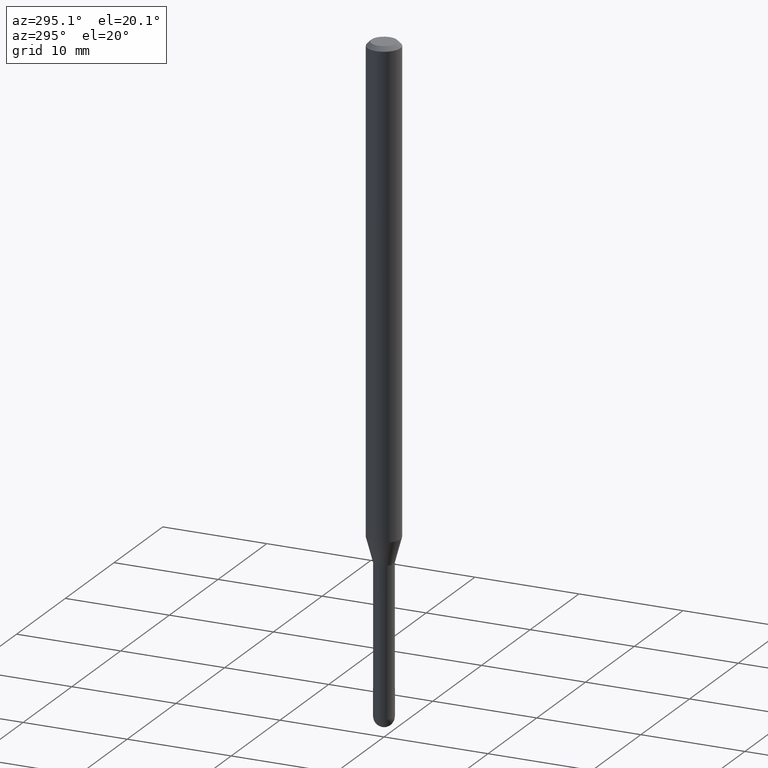
[diagram: clean part render]
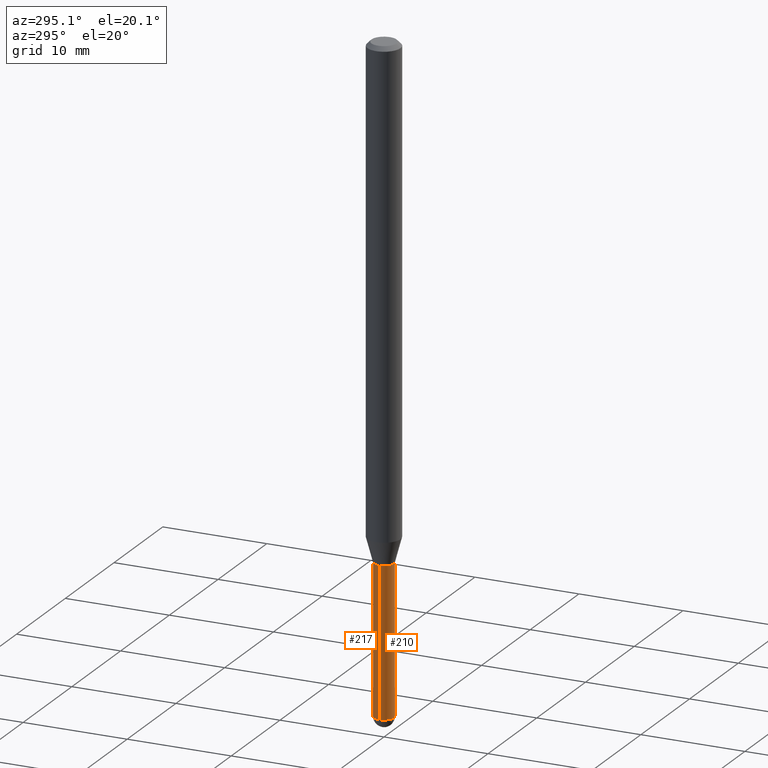
[diagram: same view with one multi-face feature highlighted, each face labeled with its STEP entity id]
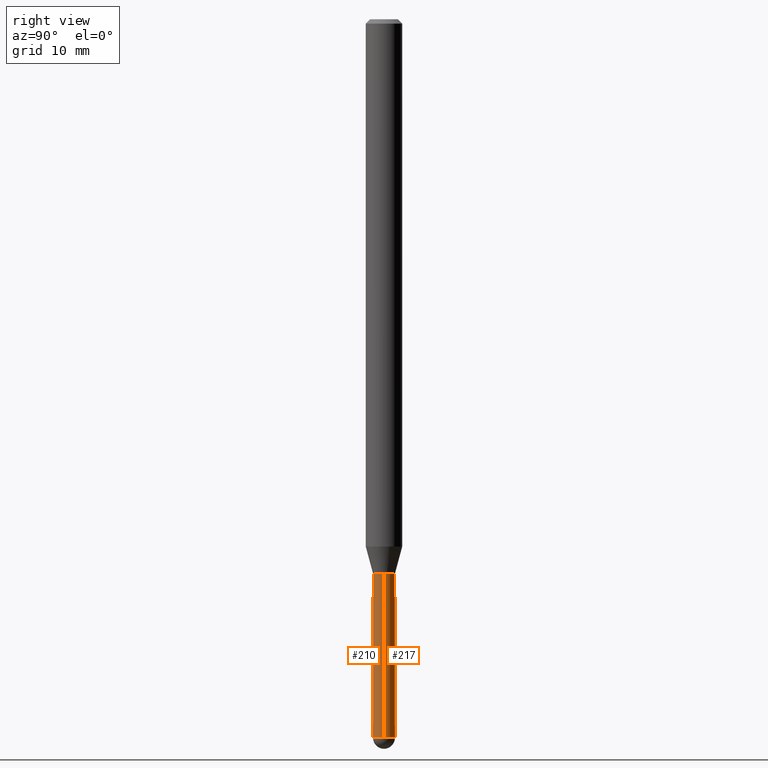
[diagram: same view with one multi-face feature highlighted, each face labeled with its STEP entity id]
A machine part, auxiliary view. The highlighted faces form ONE feature: a constant-radius fillet chain: 2 tangent blend faces with common blend radius 0.9525 mm. The faces share edges in the B-rep.
A second angle (right view) of the same feature is appended — it is thin or edge-on in the first view.
Their STEP definitions:
[1] entity #210 (Cylinder):
#4 = CARTESIAN_POINT ( 'NONE',  ( 0.03749999999999999861, -2.618611004132350016E-16, 1.828566290923475922E-30 ) ) ;
#14 = AXIS2_PLACEMENT_3D ( 'NONE', #33, #318, #356 ) ;
#16 = EDGE_CURVE ( 'NONE', #404, #69, #508, .T. ) ;
#33 = CARTESIAN_POINT ( 'NONE',  ( 0.000000000000000000, 0.000000000000000000, 0.000000000000000000 ) ) ;
#69 = VERTEX_POINT ( 'NONE', #321 ) ;
#75 = EDGE_CURVE ( 'NONE', #282, #421, #417, .T. ) ;
#84 = EDGE_LOOP ( 'NONE', ( #392, #131, #233, #481, #231 ) ) ;
#97 = EDGE_CURVE ( 'NONE', #282, #265, #251, .T. ) ;
#105 = DIRECTION ( 'NONE',  ( -2.445468806185136597E-29, 3.491481338843145583E-15, 1.000000000000000000 ) ) ;
#112 = DIRECTION ( 'NONE',  ( 1.000000000000000000, -6.982962677686242256E-15, 0.000000000000000000 ) ) ;
#117 = CARTESIAN_POINT ( 'NONE',  ( 6.021966935230899318E-29, -8.597772796901246653E-15, -2.462500000000000355 ) ) ;
#128 = CARTESIAN_POINT ( 'NONE',  ( 4.646390731751759982E-29, -6.633814543801977041E-15, -1.900000000000000133 ) ) ;
#131 = ORIENTED_EDGE ( 'NONE', *, *, #75, .T. ) ;
#133 = EDGE_CURVE ( 'NONE', #421, #404, #286, .T. ) ;
#137 = VECTOR ( 'NONE', #447, 39.37007874015748143 ) ;
#163 = VECTOR ( 'NONE', #205, 39.37007874015748143 ) ;
#201 = CYLINDRICAL_SURFACE ( 'NONE', #14, 0.03749999999999999861 ) ;
#204 = CARTESIAN_POINT ( 'NONE',  ( 6.021966935230899318E-29, -8.597772796901246653E-15, -2.462500000000000355 ) ) ;
#205 = DIRECTION ( 'NONE',  ( -2.445468806185136877E-29, 3.491481338843145188E-15, 1.000000000000000000 ) ) ;
#206 = AXIS2_PLACEMENT_3D ( 'NONE', #117, #285, #477 ) ;
#210 = ADVANCED_FACE ( 'NONE', ( #239 ), #201, .T. ) ;
#231 = ORIENTED_EDGE ( 'NONE', *, *, #237, .F. ) ;
#233 = ORIENTED_EDGE ( 'NONE', *, *, #133, .T. ) ;
#237 = EDGE_CURVE ( 'NONE', #265, #69, #460, .T. ) ;
#239 = FACE_OUTER_BOUND ( 'NONE', #84, .T. ) ;
#248 = DIRECTION ( 'NONE',  ( 1.000000000000000000, -6.982962677686268288E-15, 0.000000000000000000 ) ) ;
#251 = LINE ( 'NONE', #293, #137 ) ;
#257 = CARTESIAN_POINT ( 'NONE',  ( -2.664535259099770148E-16, -0.03750000000000855427, -2.462500000000000355 ) ) ;
#265 = VERTEX_POINT ( 'NONE', #325 ) ;
#282 = VERTEX_POINT ( 'NONE', #408 ) ;
#285 = DIRECTION ( 'NONE',  ( -2.445468806185136597E-29, 3.491481338843145583E-15, 1.000000000000000000 ) ) ;
#286 = CIRCLE ( 'NONE', #468, 0.03749999999999999861 ) ;
#287 = DIRECTION ( 'NONE',  ( -2.445468806185136597E-29, 3.491481338843145583E-15, 1.000000000000000000 ) ) ;
#293 = CARTESIAN_POINT ( 'NONE',  ( -0.03749999999999999861, 2.664535259100375598E-16, -1.844600658845589808E-30 ) ) ;
#318 = DIRECTION ( 'NONE',  ( -2.445468806185136597E-29, 3.491481338843145583E-15, 1.000000000000000000 ) ) ;
#321 = CARTESIAN_POINT ( 'NONE',  ( 0.03749999999999999861, -6.895675644215212043E-15, -1.900000000000000133 ) ) ;
#325 = CARTESIAN_POINT ( 'NONE',  ( -0.03749999999999999861, -7.349340144441574435E-15, -1.900000000000000133 ) ) ;
#356 = DIRECTION ( 'NONE',  ( 1.000000000000000000, -6.982962677686266711E-15, 4.876176775795935793E-29 ) ) ;
#359 = CARTESIAN_POINT ( 'NONE',  ( 0.03749999999999999861, -7.877654770764846060E-15, -2.462500000000000355 ) ) ;
#392 = ORIENTED_EDGE ( 'NONE', *, *, #97, .F. ) ;
#404 = VERTEX_POINT ( 'NONE', #359 ) ;
#408 = CARTESIAN_POINT ( 'NONE',  ( -0.03749999999999999861, -7.349340144441574435E-15, -2.462500000000000355 ) ) ;
#417 = CIRCLE ( 'NONE', #206, 0.03749999999999999861 ) ;
#421 = VERTEX_POINT ( 'NONE', #257 ) ;
#447 = DIRECTION ( 'NONE',  ( -2.445468806185136877E-29, 3.491481338843145188E-15, 1.000000000000000000 ) ) ;
#457 = AXIS2_PLACEMENT_3D ( 'NONE', #128, #105, #248 ) ;
#460 = CIRCLE ( 'NONE', #457, 0.03749999999999999861 ) ;
#468 = AXIS2_PLACEMENT_3D ( 'NONE', #204, #287, #112 ) ;
#477 = DIRECTION ( 'NONE',  ( 1.000000000000000000, -6.982962677686242256E-15, 0.000000000000000000 ) ) ;
#481 = ORIENTED_EDGE ( 'NONE', *, *, #16, .T. ) ;
#508 = LINE ( 'NONE', #4, #163 ) ;
[2] entity #217 (Cylinder):
#4 = CARTESIAN_POINT ( 'NONE',  ( 0.03749999999999999861, -2.618611004132350016E-16, 1.828566290923475922E-30 ) ) ;
#7 = CIRCLE ( 'NONE', #440, 0.03749999999999999861 ) ;
#16 = EDGE_CURVE ( 'NONE', #404, #69, #508, .T. ) ;
#24 = CIRCLE ( 'NONE', #346, 0.03749999999999999861 ) ;
#45 = DIRECTION ( 'NONE',  ( -2.445468806185136597E-29, 3.491481338843145583E-15, 1.000000000000000000 ) ) ;
#57 = ORIENTED_EDGE ( 'NONE', *, *, #490, .F. ) ;
#58 = EDGE_CURVE ( 'NONE', #404, #272, #24, .T. ) ;
#69 = VERTEX_POINT ( 'NONE', #321 ) ;
#77 = CIRCLE ( 'NONE', #354, 0.03749999999999999861 ) ;
#82 = ORIENTED_EDGE ( 'NONE', *, *, #16, .F. ) ;
#97 = EDGE_CURVE ( 'NONE', #282, #265, #251, .T. ) ;
#137 = VECTOR ( 'NONE', #447, 39.37007874015748143 ) ;
#163 = VECTOR ( 'NONE', #205, 39.37007874015748143 ) ;
#165 = AXIS2_PLACEMENT_3D ( 'NONE', #196, #509, #473 ) ;
#182 = ORIENTED_EDGE ( 'NONE', *, *, #97, .T. ) ;
#196 = CARTESIAN_POINT ( 'NONE',  ( 0.000000000000000000, 0.000000000000000000, 0.000000000000000000 ) ) ;
#205 = DIRECTION ( 'NONE',  ( -2.445468806185136877E-29, 3.491481338843145188E-15, 1.000000000000000000 ) ) ;
#208 = DIRECTION ( 'NONE',  ( 1.000000000000000000, -6.982962677686242256E-15, 0.000000000000000000 ) ) ;
#217 = ADVANCED_FACE ( 'NONE', ( #232 ), #391, .T. ) ;
#232 = FACE_OUTER_BOUND ( 'NONE', #357, .T. ) ;
#240 = EDGE_CURVE ( 'NONE', #272, #282, #77, .T. ) ;
#251 = LINE ( 'NONE', #293, #137 ) ;
#265 = VERTEX_POINT ( 'NONE', #325 ) ;
#272 = VERTEX_POINT ( 'NONE', #371 ) ;
#279 = CARTESIAN_POINT ( 'NONE',  ( 6.021966935230899318E-29, -8.597772796901246653E-15, -2.462500000000000355 ) ) ;
#282 = VERTEX_POINT ( 'NONE', #408 ) ;
#293 = CARTESIAN_POINT ( 'NONE',  ( -0.03749999999999999861, 2.664535259100375598E-16, -1.844600658845589808E-30 ) ) ;
#321 = CARTESIAN_POINT ( 'NONE',  ( 0.03749999999999999861, -6.895675644215212043E-15, -1.900000000000000133 ) ) ;
#325 = CARTESIAN_POINT ( 'NONE',  ( -0.03749999999999999861, -7.349340144441574435E-15, -1.900000000000000133 ) ) ;
#331 = DIRECTION ( 'NONE',  ( -2.445468806185136597E-29, 3.491481338843145583E-15, 1.000000000000000000 ) ) ;
#346 = AXIS2_PLACEMENT_3D ( 'NONE', #279, #45, #208 ) ;
#354 = AXIS2_PLACEMENT_3D ( 'NONE', #369, #331, #364 ) ;
#357 = EDGE_LOOP ( 'NONE', ( #469, #182, #57, #82, #390 ) ) ;
#359 = CARTESIAN_POINT ( 'NONE',  ( 0.03749999999999999861, -7.877654770764846060E-15, -2.462500000000000355 ) ) ;
#364 = DIRECTION ( 'NONE',  ( 1.000000000000000000, -6.982962677686242256E-15, 0.000000000000000000 ) ) ;
#369 = CARTESIAN_POINT ( 'NONE',  ( 6.021966935230899318E-29, -8.597772796901246653E-15, -2.462500000000000355 ) ) ;
#371 = CARTESIAN_POINT ( 'NONE',  ( 2.618611004132948565E-16, 0.03749999999999135275, -2.462500000000000355 ) ) ;
#390 = ORIENTED_EDGE ( 'NONE', *, *, #58, .T. ) ;
#391 = CYLINDRICAL_SURFACE ( 'NONE', #165, 0.03749999999999999861 ) ;
#395 = DIRECTION ( 'NONE',  ( 1.000000000000000000, -6.982962677686268288E-15, 0.000000000000000000 ) ) ;
#404 = VERTEX_POINT ( 'NONE', #359 ) ;
#408 = CARTESIAN_POINT ( 'NONE',  ( -0.03749999999999999861, -7.349340144441574435E-15, -2.462500000000000355 ) ) ;
#440 = AXIS2_PLACEMENT_3D ( 'NONE', #476, #510, #395 ) ;
#447 = DIRECTION ( 'NONE',  ( -2.445468806185136877E-29, 3.491481338843145188E-15, 1.000000000000000000 ) ) ;
#469 = ORIENTED_EDGE ( 'NONE', *, *, #240, .T. ) ;
#473 = DIRECTION ( 'NONE',  ( 1.000000000000000000, -6.982962677686266711E-15, 4.876176775795935793E-29 ) ) ;
#476 = CARTESIAN_POINT ( 'NONE',  ( 4.646390731751759982E-29, -6.633814543801977041E-15, -1.900000000000000133 ) ) ;
#490 = EDGE_CURVE ( 'NONE', #69, #265, #7, .T. ) ;
#508 = LINE ( 'NONE', #4, #163 ) ;
#509 = DIRECTION ( 'NONE',  ( -2.445468806185136597E-29, 3.491481338843145583E-15, 1.000000000000000000 ) ) ;
#510 = DIRECTION ( 'NONE',  ( -2.445468806185136597E-29, 3.491481338843145583E-15, 1.000000000000000000 ) ) ;